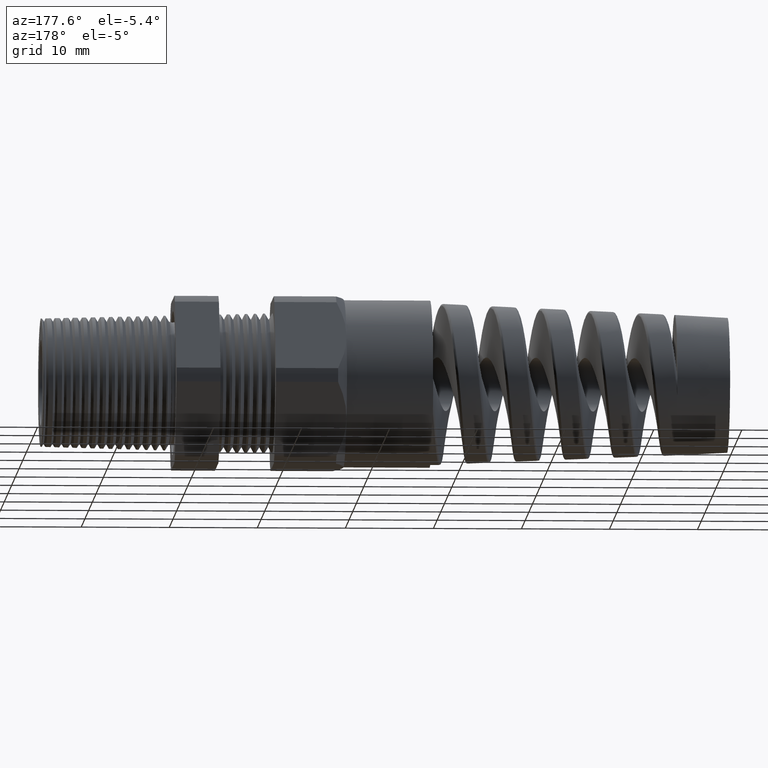
[diagram: clean part render]
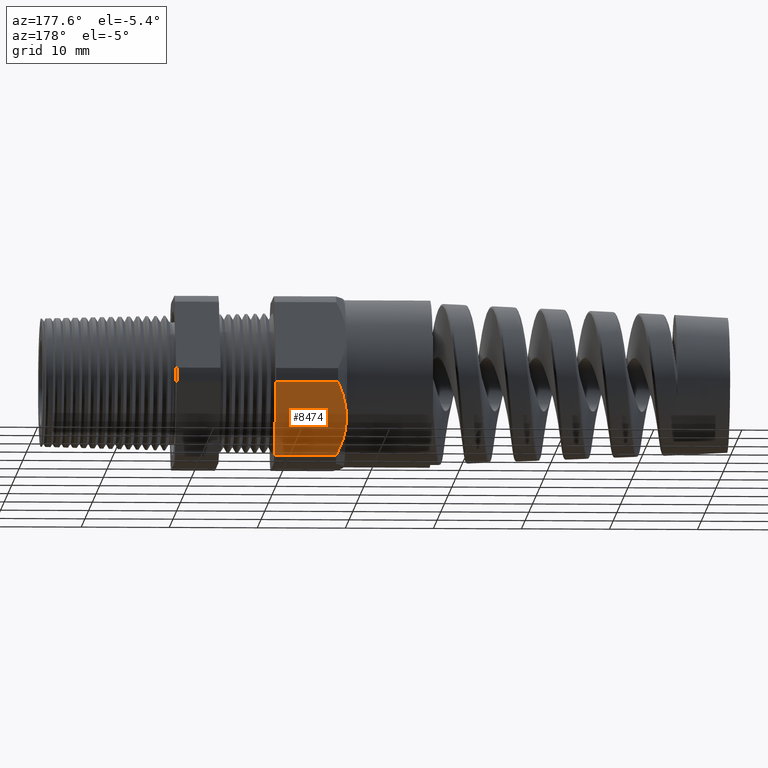
[diagram: same view with one face highlighted and labeled with its STEP entity id]
A machine part, auxiliary view. The second image highlights one B-rep face of the part: STEP entity #8474.
In plain terms, the highlighted planar face has unit normal (0, 0.866, -0.5).
Its self-contained STEP definition (entity closure, byte-faithful):
#819 = DIRECTION ( 'NONE',  ( 0.0000000000000000000, 0.5000000000000000000, 0.8660254037844386000 ) ) ;
#820 = VECTOR ( 'NONE', #819, 39.37007874015748900 ) ;
#821 = CARTESIAN_POINT ( 'NONE',  ( -0.7548031496062992400, 0.4035095264191646000, -0.05110099890395102000 ) ) ;
#822 = LINE ( 'NONE', #821, #820 ) ;
#823 = CARTESIAN_POINT ( 'NONE',  ( -0.7548031496062992400, 0.4150909474475088000, -0.03104138925901227900 ) ) ;
#824 = DIRECTION ( 'NONE',  ( -1.000000000000000000, 0.0000000000000000000, 0.0000000000000000000 ) ) ;
#825 = VECTOR ( 'NONE', #824, 39.37007874015748100 ) ;
#826 = CARTESIAN_POINT ( 'NONE',  ( 0.2800000000000000300, 0.4150909474475088000, -0.03104138925901227900 ) ) ;
#827 = LINE ( 'NONE', #826, #825 ) ;
#828 = CARTESIAN_POINT ( 'NONE',  ( -1.032450787401574900, 0.4150909474475088000, -0.03104138925901229000 ) ) ;
#829 = CARTESIAN_POINT ( 'NONE',  ( -1.044940210019931400, 0.4007030353962317000, -0.05596198394665685700 ) ) ;
#830 = CARTESIAN_POINT ( 'NONE',  ( -1.055396227873165900, 0.3858321107701057100, -0.08171918095463419400 ) ) ;
#831 = CARTESIAN_POINT ( 'NONE',  ( -1.069754776879238600, 0.3557072427410924400, -0.1338969829521926000 ) ) ;
#832 = CARTESIAN_POINT ( 'NONE',  ( -1.073700787401574500, 0.3403893008356695900, -0.1604284365997730200 ) ) ;
#833 = CARTESIAN_POINT ( 'NONE',  ( -1.073700787401574700, 0.3247595264191646700, -0.1875000000000001100 ) ) ;
#834 = CARTESIAN_POINT ( 'NONE',  ( -1.073700787401574700, 0.3247595264191646700, -0.1875000000000001100 ) ) ;
#835 = CARTESIAN_POINT ( 'NONE',  ( -1.073700787401574700, 0.3169392765875835300, -0.2010450700361806300 ) ) ;
#836 = CARTESIAN_POINT ( 'NONE',  ( -1.072696738463057000, 0.3090355397383387500, -0.2147347438287267300 ) ) ;
#837 = CARTESIAN_POINT ( 'NONE',  ( -1.068863262518850100, 0.2935887246993245700, -0.2414894122914183200 ) ) ;
#838 = CARTESIAN_POINT ( 'NONE',  ( -1.066041453103500500, 0.2859780998530066500, -0.2546714012025870800 ) ) ;
#839 = CARTESIAN_POINT ( 'NONE',  ( -1.055235354507070100, 0.2634379006963008000, -0.2937121713547226600 ) ) ;
#840 = CARTESIAN_POINT ( 'NONE',  ( -1.044924754372841900, 0.2487982124163725900, -0.3190688552625287100 ) ) ;
#841 = CARTESIAN_POINT ( 'NONE',  ( -1.032450787401574900, 0.2344281053908204300, -0.3439586107409878200 ) ) ;
#842 = CARTESIAN_POINT ( 'NONE',  ( -1.032450787401574900, 0.4150909474475088000, -0.03104138925901229000 ) ) ;
#843 = B_SPLINE_CURVE_WITH_KNOTS ( 'NONE', 3,
 ( #833, #832, #831, #830, #829, #828 ),
 .UNSPECIFIED., .F., .F.,
 ( 4, 2, 4 ),
 ( 0.004709976344604657600, 0.007063225540252128900, 0.009416474735899599300 ),
 .UNSPECIFIED. ) ;
#844 = B_SPLINE_CURVE_WITH_KNOTS ( 'NONE', 3,
 ( #841, #840, #839, #838, #837, #836, #835, #834 ),
 .UNSPECIFIED., .F., .F.,
 ( 4, 2, 2, 4 ),
 ( 2.483253706007067000E-007, 0.002355112334987630900, 0.003532544339796145100, 0.004709976344604657600 ),
 .UNSPECIFIED. ) ;
#8089 = CARTESIAN_POINT ( 'NONE',  ( -1.073700787401574700, 0.3247595264191646700, -0.1875000000000001100 ) ) ;
#8474 = ADVANCED_FACE ( 'NONE', ( #11246 ), #11245, .T. ) ;
#8475 = EDGE_LOOP ( 'NONE', ( #8476, #8531, #8533, #8536, #8539 ) ) ;
#8476 = ORIENTED_EDGE ( 'NONE', *, *, #8477, .T. ) ;
#8477 = EDGE_CURVE ( 'NONE', #8478, #8479, #11240, .T. ) ;
#8478 = VERTEX_POINT ( 'NONE', #11236 ) ;
#8479 = VERTEX_POINT ( 'NONE', #11235 ) ;
#8531 = ORIENTED_EDGE ( 'NONE', *, *, #8532, .T. ) ;
#8532 = EDGE_CURVE ( 'NONE', #8479, #11617, #844, .T. ) ;
#8533 = ORIENTED_EDGE ( 'NONE', *, *, #8534, .T. ) ;
#8534 = EDGE_CURVE ( 'NONE', #11617, #8535, #843, .T. ) ;
#8535 = VERTEX_POINT ( 'NONE', #842 ) ;
#8536 = ORIENTED_EDGE ( 'NONE', *, *, #8537, .F. ) ;
#8537 = EDGE_CURVE ( 'NONE', #8538, #8535, #827, .T. ) ;
#8538 = VERTEX_POINT ( 'NONE', #823 ) ;
#8539 = ORIENTED_EDGE ( 'NONE', *, *, #8540, .F. ) ;
#8540 = EDGE_CURVE ( 'NONE', #8478, #8538, #822, .T. ) ;
#11235 = CARTESIAN_POINT ( 'NONE',  ( -1.032450787401574900, 0.2344281053908204300, -0.3439586107409878200 ) ) ;
#11236 = CARTESIAN_POINT ( 'NONE',  ( -0.7548031496062992400, 0.2344281053908204300, -0.3439586107409878200 ) ) ;
#11237 = DIRECTION ( 'NONE',  ( -1.000000000000000000, 0.0000000000000000000, 0.0000000000000000000 ) ) ;
#11238 = VECTOR ( 'NONE', #11237, 39.37007874015748100 ) ;
#11239 = CARTESIAN_POINT ( 'NONE',  ( 0.2800000000000000300, 0.2344281053908204300, -0.3439586107409878200 ) ) ;
#11240 = LINE ( 'NONE', #11239, #11238 ) ;
#11241 = DIRECTION ( 'NONE',  ( 0.0000000000000000000, 0.5000000000000000000, 0.8660254037844386000 ) ) ;
#11242 = DIRECTION ( 'NONE',  ( 0.0000000000000000000, 0.8660254037844387100, -0.5000000000000001100 ) ) ;
#11243 = CARTESIAN_POINT ( 'NONE',  ( 0.2800000000000000300, 0.4150909474475088000, -0.03104138925901227900 ) ) ;
#11244 = AXIS2_PLACEMENT_3D ( 'NONE', #11243, #11242, #11241 ) ;
#11245 = PLANE ( 'NONE',  #11244 ) ;
#11246 = FACE_OUTER_BOUND ( 'NONE', #8475, .T. ) ;
#11617 = VERTEX_POINT ( 'NONE', #8089 ) ;